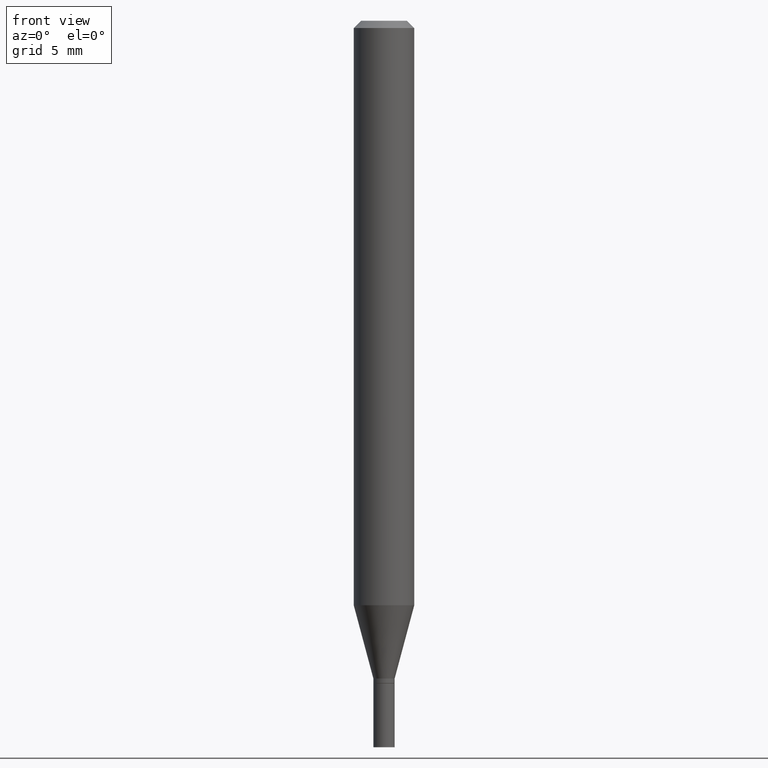
[diagram: clean part render]
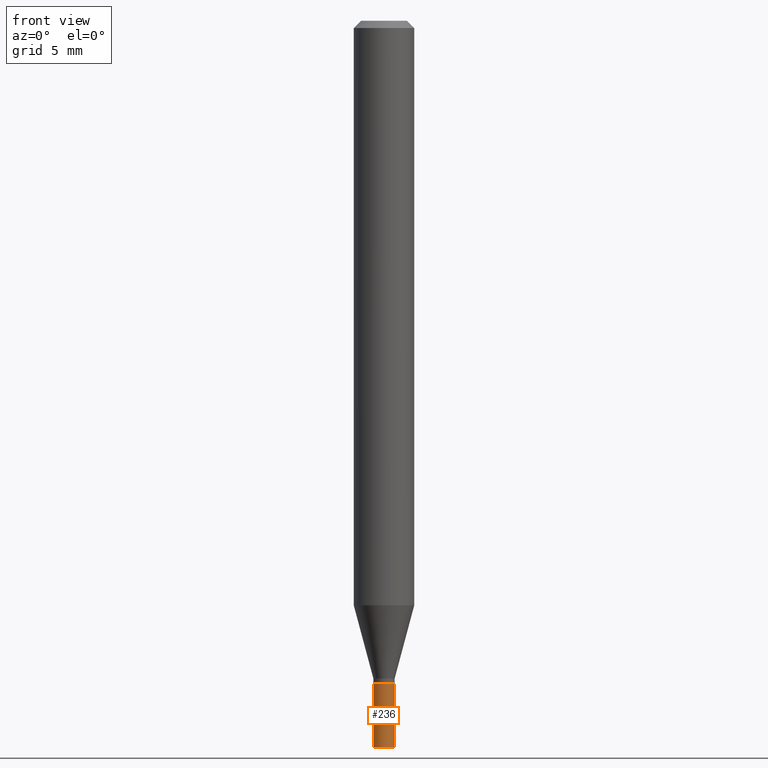
[diagram: same view with one face highlighted and labeled with its STEP entity id]
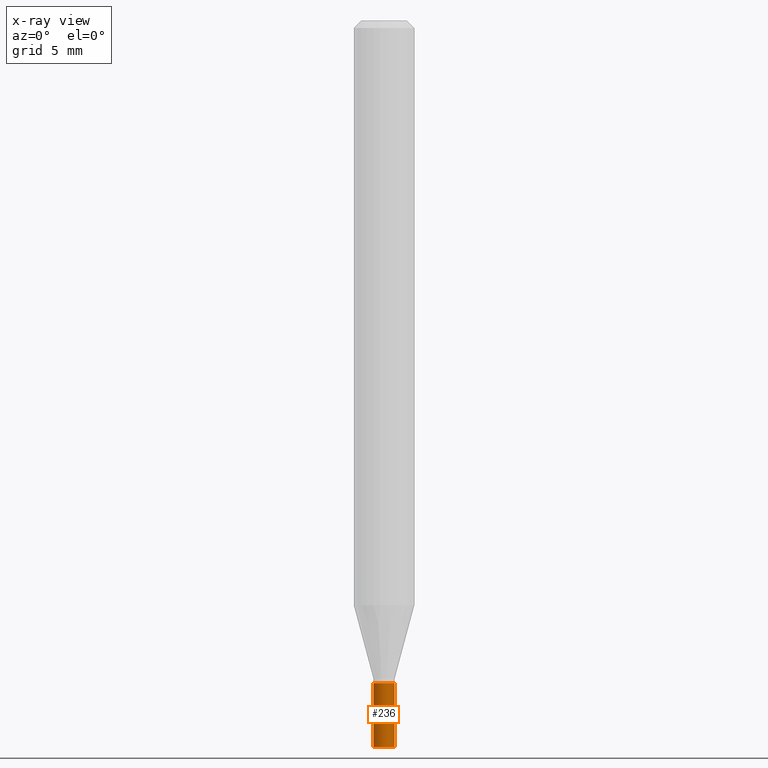
[diagram: x-ray of the same camera — body ghosted, the highlighted face saturated]
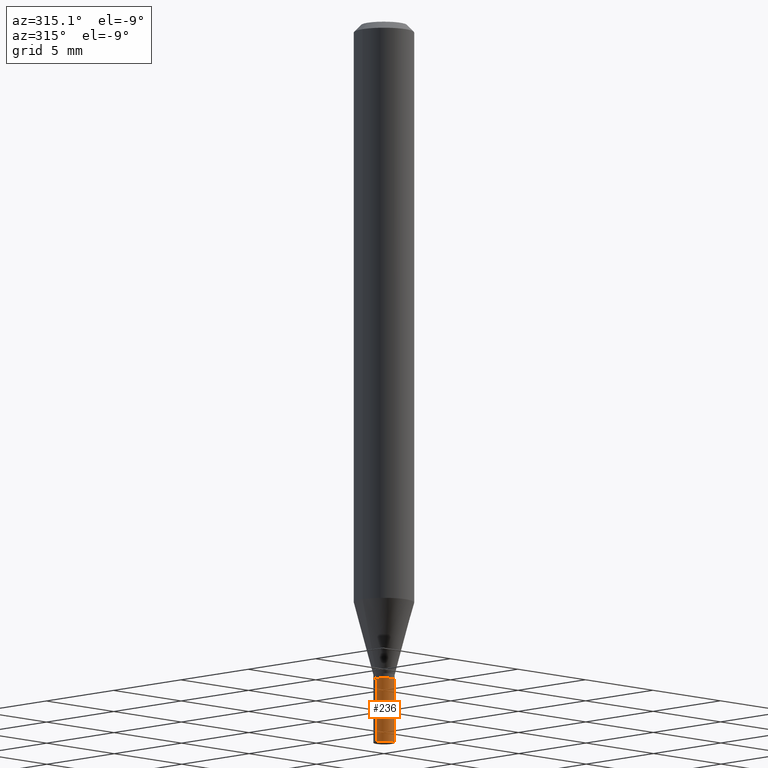
[diagram: same view with one face highlighted and labeled with its STEP entity id]
A machine part, front view. The second image highlights one B-rep face of the part: STEP entity #236.
The next image is the same camera in x-ray: the body ghosted, the highlighted face saturated — about 0% of this face is hidden behind the body in this view.
A second angle (auxiliary view) of the same face is appended — the face is thin or edge-on in the first view.
In plain terms, the highlighted cylindrical surface (edge-blend (fillet) strip) has radius 0.5588 mm, axis along (-0, 0, 1).
Its self-contained STEP definition (entity closure, byte-faithful):
#11 = DIRECTION ( 'NONE',  ( -2.445468806185136877E-29, 3.491481338843145188E-15, 1.000000000000000000 ) ) ;
#12 = CYLINDRICAL_SURFACE ( 'NONE', #286, 0.02199999999999999872 ) ;
#13 = ORIENTED_EDGE ( 'NONE', *, *, #359, .F. ) ;
#24 = LINE ( 'NONE', #241, #221 ) ;
#35 = CARTESIAN_POINT ( 'NONE',  ( -0.02199999999999999872, -4.850464838033848848E-15, -1.500000000000000222 ) ) ;
#40 = LINE ( 'NONE', #324, #154 ) ;
#48 = ORIENTED_EDGE ( 'NONE', *, *, #182, .T. ) ;
#75 = CARTESIAN_POINT ( 'NONE',  ( -0.02199999999999999872, -4.850464838033848848E-15, -1.368000000000000105 ) ) ;
#93 = AXIS2_PLACEMENT_3D ( 'NONE', #399, #230, #371 ) ;
#102 = VERTEX_POINT ( 'NONE', #405 ) ;
#104 = EDGE_CURVE ( 'NONE', #102, #294, #24, .T. ) ;
#121 = DIRECTION ( 'NONE',  ( -2.445468806185136877E-29, 3.491481338843145188E-15, 1.000000000000000000 ) ) ;
#126 = VERTEX_POINT ( 'NONE', #75 ) ;
#131 = VERTEX_POINT ( 'NONE', #35 ) ;
#154 = VECTOR ( 'NONE', #11, 39.37007874015748143 ) ;
#156 = CARTESIAN_POINT ( 'NONE',  ( 0.000000000000000000, 0.000000000000000000, 0.000000000000000000 ) ) ;
#173 = DIRECTION ( 'NONE',  ( -2.445468806185136597E-29, 3.491481338843145583E-15, 1.000000000000000000 ) ) ;
#174 = EDGE_LOOP ( 'NONE', ( #13, #48, #249, #190 ) ) ;
#181 = CARTESIAN_POINT ( 'NONE',  ( 3.345401326861266963E-29, -4.776346471537423880E-15, -1.368000000000000105 ) ) ;
#182 = EDGE_CURVE ( 'NONE', #131, #102, #238, .T. ) ;
#190 = ORIENTED_EDGE ( 'NONE', *, *, #268, .F. ) ;
#198 = AXIS2_PLACEMENT_3D ( 'NONE', #181, #173, #460 ) ;
#221 = VECTOR ( 'NONE', #121, 39.37007874015748143 ) ;
#230 = DIRECTION ( 'NONE',  ( -2.445468806185136597E-29, 3.491481338843145583E-15, 1.000000000000000000 ) ) ;
#236 = ADVANCED_FACE ( 'NONE', ( #263 ), #12, .T. ) ;
#238 = CIRCLE ( 'NONE', #93, 0.02199999999999999872 ) ;
#241 = CARTESIAN_POINT ( 'NONE',  ( 0.02199999999999999872, -1.536251789090978361E-16, 1.072758890675105930E-30 ) ) ;
#249 = ORIENTED_EDGE ( 'NONE', *, *, #104, .T. ) ;
#263 = FACE_OUTER_BOUND ( 'NONE', #174, .T. ) ;
#264 = DIRECTION ( 'NONE',  ( 1.000000000000000000, -6.982962677686265922E-15, 4.876176775795936353E-29 ) ) ;
#268 = EDGE_CURVE ( 'NONE', #126, #294, #366, .T. ) ;
#286 = AXIS2_PLACEMENT_3D ( 'NONE', #156, #435, #264 ) ;
#294 = VERTEX_POINT ( 'NONE', #327 ) ;
#324 = CARTESIAN_POINT ( 'NONE',  ( -0.02199999999999999872, 1.563194018672220318E-16, -1.082165719856079240E-30 ) ) ;
#327 = CARTESIAN_POINT ( 'NONE',  ( 0.02199999999999999872, -4.929971650446520927E-15, -1.368000000000000105 ) ) ;
#359 = EDGE_CURVE ( 'NONE', #131, #126, #40, .T. ) ;
#366 = CIRCLE ( 'NONE', #198, 0.02199999999999999872 ) ;
#371 = DIRECTION ( 'NONE',  ( 1.000000000000000000, -6.982962677686245411E-15, 0.000000000000000000 ) ) ;
#399 = CARTESIAN_POINT ( 'NONE',  ( 3.668203209277704895E-29, -5.237222008264718177E-15, -1.500000000000000222 ) ) ;
#405 = CARTESIAN_POINT ( 'NONE',  ( 0.02199999999999999872, -5.390847187173816013E-15, -1.500000000000000222 ) ) ;
#435 = DIRECTION ( 'NONE',  ( -2.445468806185136597E-29, 3.491481338843145583E-15, 1.000000000000000000 ) ) ;
#460 = DIRECTION ( 'NONE',  ( 1.000000000000000000, -6.982962677686245411E-15, 0.000000000000000000 ) ) ;